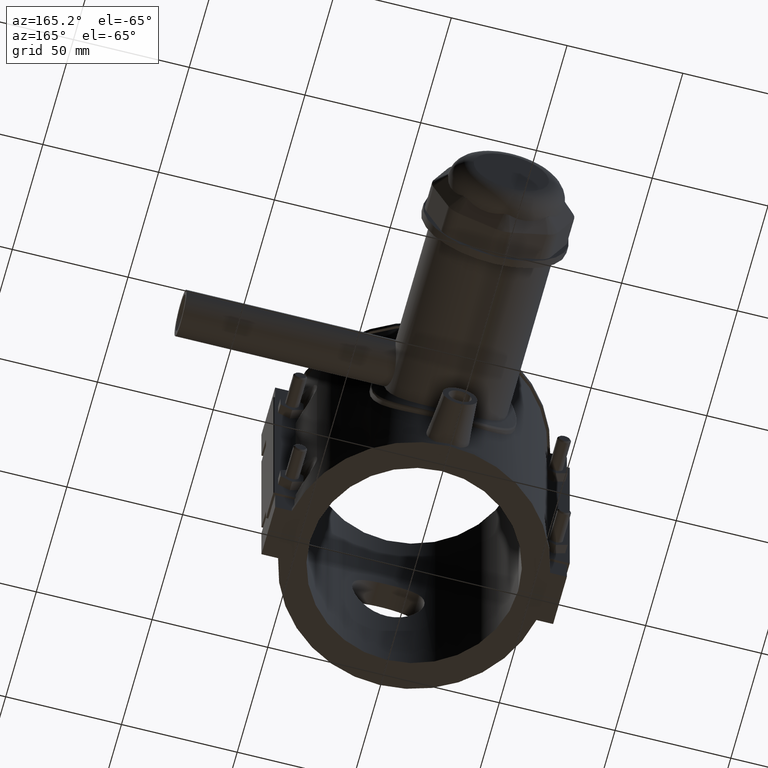
[diagram: clean part render]
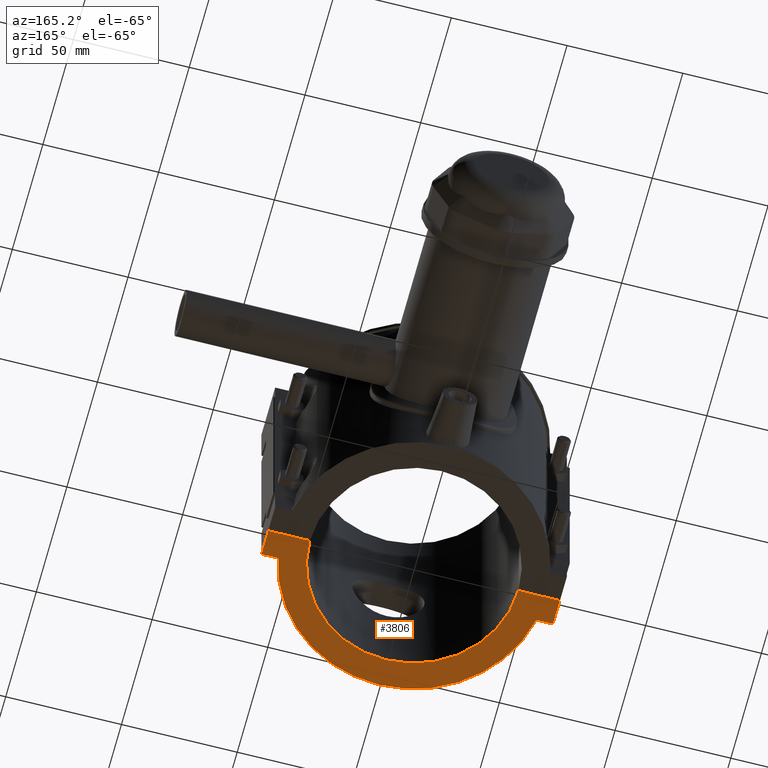
[diagram: same view with one face highlighted and labeled with its STEP entity id]
A machine part, auxiliary view. The second image highlights one B-rep face of the part: STEP entity #3806.
In plain terms, the highlighted planar face has unit normal (0, 0, 1).
Its self-contained STEP definition (entity closure, byte-faithful):
#124=LINE('',#6469,#423);
#285=LINE('',#7625,#584);
#290=LINE('',#7633,#589);
#329=LINE('',#8001,#628);
#331=LINE('',#8005,#630);
#336=LINE('',#8015,#635);
#423=VECTOR('',#4439,7.20691300886821);
#584=VECTOR('',#4874,18.0000277777864);
#589=VECTOR('',#4883,11.2);
#628=VECTOR('',#5046,7.20691300886821);
#630=VECTOR('',#5050,11.2);
#635=VECTOR('',#5061,18.0000277777864);
#776=PLANE('',#4132);
#825=CIRCLE('',#3917,56.916);
#903=CIRCLE('',#4133,45.);
#1174=FACE_OUTER_BOUND('',#1447,.T.);
#1447=EDGE_LOOP('',(#3480,#3481,#3482,#3483,#3484,#3485,#3486,#3487));
#1672=VERTEX_POINT('',#6438);
#1673=VERTEX_POINT('',#6439);
#1684=VERTEX_POINT('',#6467);
#1863=VERTEX_POINT('',#7622);
#1864=VERTEX_POINT('',#7624);
#1912=VERTEX_POINT('',#8000);
#1913=VERTEX_POINT('',#8004);
#1915=VERTEX_POINT('',#8014);
#2082=EDGE_CURVE('',#1672,#1673,#825,.T.);
#2097=EDGE_CURVE('',#1672,#1684,#124,.T.);
#2349=EDGE_CURVE('',#1864,#1863,#285,.T.);
#2354=EDGE_CURVE('',#1684,#1864,#290,.T.);
#2433=EDGE_CURVE('',#1912,#1673,#329,.T.);
#2435=EDGE_CURVE('',#1913,#1912,#331,.T.);
#2440=EDGE_CURVE('',#1915,#1913,#336,.T.);
#2444=EDGE_CURVE('',#1863,#1915,#903,.T.);
#3480=ORIENTED_EDGE('',*,*,#2440,.T.);
#3481=ORIENTED_EDGE('',*,*,#2435,.T.);
#3482=ORIENTED_EDGE('',*,*,#2433,.T.);
#3483=ORIENTED_EDGE('',*,*,#2082,.F.);
#3484=ORIENTED_EDGE('',*,*,#2097,.T.);
#3485=ORIENTED_EDGE('',*,*,#2354,.T.);
#3486=ORIENTED_EDGE('',*,*,#2349,.T.);
#3487=ORIENTED_EDGE('',*,*,#2444,.T.);
#3806=ADVANCED_FACE('',(#1174),#776,.F.);
#3917=AXIS2_PLACEMENT_3D('',#6440,#4414,#4415);
#4132=AXIS2_PLACEMENT_3D('',#8022,#5070,#5071);
#4133=AXIS2_PLACEMENT_3D('',#8023,#5072,#5073);
#4414=DIRECTION('center_axis',(0.,0.,1.));
#4415=DIRECTION('ref_axis',(-0.980270697011944,-0.197659709044908,0.));
#4439=DIRECTION('',(-1.,0.,0.));
#4874=DIRECTION('',(1.,2.75352932694731E-19,0.));
#4883=DIRECTION('',(0.,1.,0.));
#5046=DIRECTION('',(-1.,0.,0.));
#5050=DIRECTION('',(0.,-1.,0.));
#5061=DIRECTION('',(1.,2.75352932694731E-19,0.));
#5070=DIRECTION('center_axis',(0.,0.,1.));
#5071=DIRECTION('ref_axis',(1.,0.,0.));
#5072=DIRECTION('center_axis',(0.,0.,1.));
#5073=DIRECTION('ref_axis',(-1.,0.,0.));
#6438=CARTESIAN_POINT('',(-55.7930869911318,-11.25,-59.));
#6439=CARTESIAN_POINT('',(55.7930869911318,-11.25,-59.));
#6440=CARTESIAN_POINT('Origin',(0.,0.,-59.));
#6467=CARTESIAN_POINT('',(-63.,-11.25,-59.));
#6469=CARTESIAN_POINT('',(-63.,-11.25,-59.));
#7622=CARTESIAN_POINT('',(-44.9999722222136,-0.0500000000000078,-59.));
#7624=CARTESIAN_POINT('',(-63.,-0.0500000000000078,-59.));
#7625=CARTESIAN_POINT('',(-61.2335421821269,-0.0500000000000078,-59.));
#7633=CARTESIAN_POINT('',(-63.,11.25,-59.));
#8000=CARTESIAN_POINT('',(63.,-11.25,-59.));
#8001=CARTESIAN_POINT('',(54.6541626959923,-11.25,-59.));
#8004=CARTESIAN_POINT('',(63.,-0.0500000000000078,-59.));
#8005=CARTESIAN_POINT('',(63.,-11.25,-59.));
#8014=CARTESIAN_POINT('',(44.9999722222136,-0.0500000000000078,-59.));
#8015=CARTESIAN_POINT('',(-61.2335421821269,-0.0500000000000078,-59.));
#8022=CARTESIAN_POINT('Origin',(-59.4670843642539,-4.01152582303405E-17,
-59.));
#8023=CARTESIAN_POINT('Origin',(0.,0.,-59.));